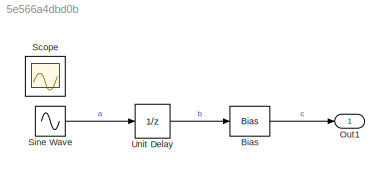
MODEL slx_5e566a4dbd0b
KIND model
CONFIG AbsTol = auto
CONFIG EnableMultiTasking = on
CONFIG FixedStep = auto
CONFIG MaxStep = auto
CONFIG MinStep = auto
CONFIG RelTol = 1e-3
CONFIG SampleTimeConstraint = Unconstrained
CONFIG Solver = VariableStepDiscrete
CONFIG SolverName = VariableStepDiscrete
CONFIG StartTime = 0.0
CONFIG StopTime = 10.0
BLOCK [Bias] Bias
  Bias = 3
  SaturateOnIntegerOverflow = off
BLOCK [Outport] Out1
  IconDisplay = Port number
BLOCK [Scope] Scope
  Floating = off
  IOType = viewer
  NumInputPorts = 1
  Ports = []
  ScopeSpecificationString = Simulink.scopes.TimeScopeBlockCfg('CurrentConfiguration', extmgr.ConfigurationSet(extmgr.Configuration('Core','General UI',true),extmgr.Configuration('Core','Source UI',true),extmgr.Configuration('Sources','WiredSimulink',true,'DataLoggingMaxPoints','7500','DataLoggingLimitDataPoints',true,'DataLoggingSaveFormat','Array','DataLoggingDecimation','1','DataLoggingDecimateData',true),extmgr.Configurat...<+2199ch>
BLOCK [Sin] Sine Wave
  AttributesFormatString = Ts = %<SampleTime>
  Ports = [0, 1]
  SampleTime = 0.5
BLOCK [UnitDelay] Unit Delay
  AttributesFormatString = I.C. = %<InitialCondition>
  SampleTime = 0.5
LINE Bias:1 -> Out1:1
LINE Sine Wave:1 -> Unit Delay:1
LINE Unit Delay:1 -> Bias:1
